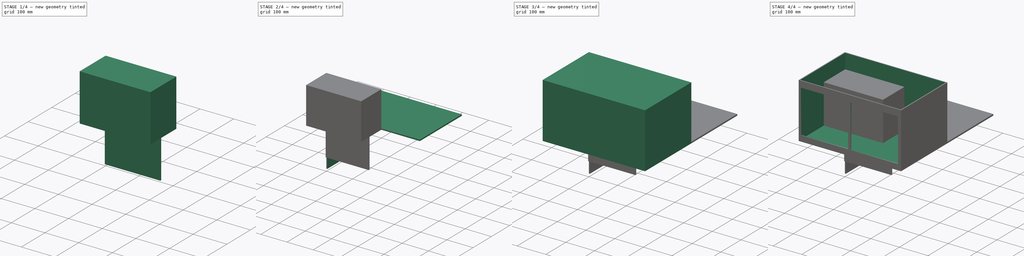
[diagram: build sequence overview — one tinted view per stage of 4, left to right]
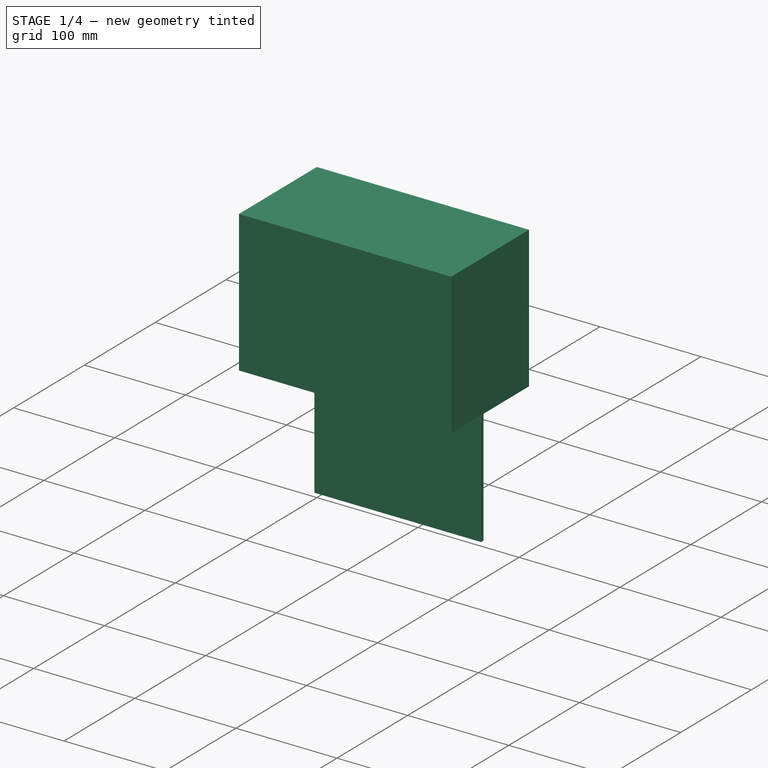
[diagram: stage 1 of 4 — iso view after this stage's code; geometry added in this stage tinted green]
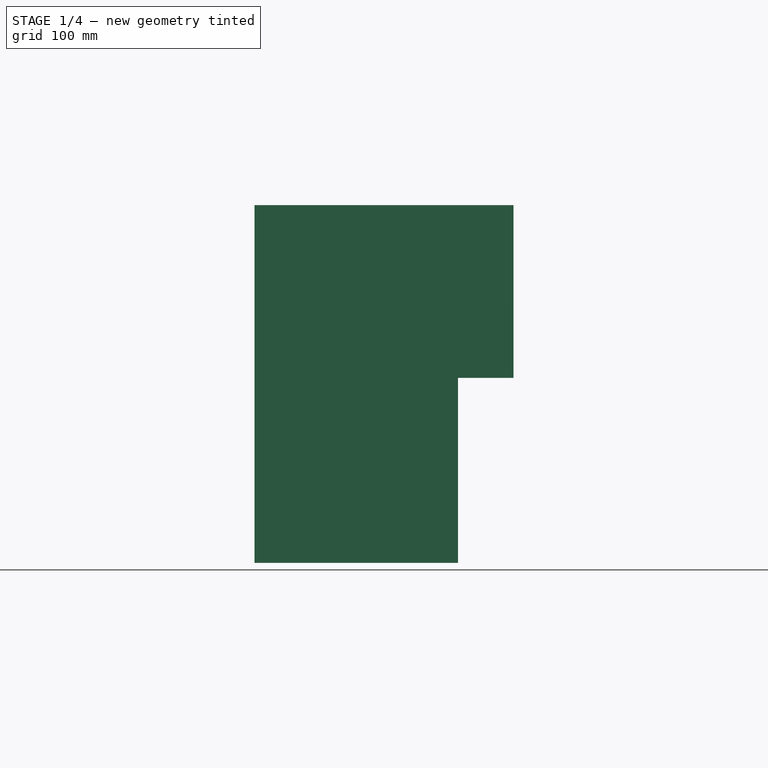
[diagram: stage 1 of 4 — front view after this stage's code; geometry added in this stage tinted green]
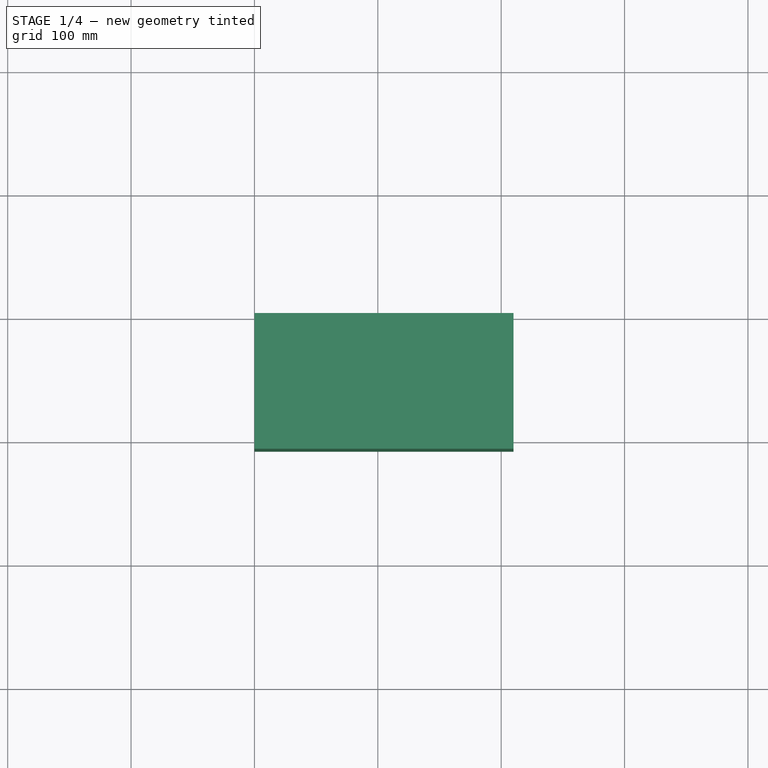
[diagram: stage 1 of 4 — top view after this stage's code; geometry added in this stage tinted green]
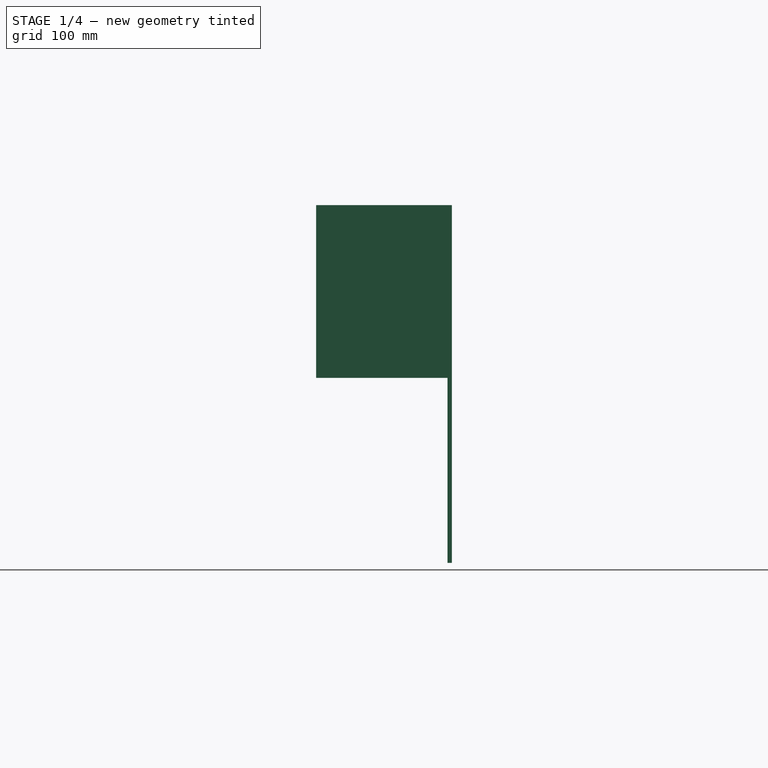
[diagram: stage 1 of 4 — right view after this stage's code; geometry added in this stage tinted green]
FCSTD DOCUMENT  (FreeCAD 0.19R24267 +99 (Git))
Label: Assembly
License: All rights reserved
LicenseURL: http://en.wikipedia.org/wiki/All_rights_reserved
objects: Sketcher::SketchObject×9, PartDesign::Pad×6, PartDesign::Body×6, Part::Feature×6, PartDesign::Pocket×3
note: 39 computed .brp shape members not serialized (recipe doc carries the construction recipe); baked Part::Feature solids carry a one-line shape summary decoded from their .brp

FEATURE [PartDesign::Body] Body003
  Group = -> [Sketch006,Pad003]
  Origin = -> Origin003
  Placement = pos=(0,-229,188) rot=(0,0,1;0rad)
  Tip = -> Pad003
FEATURE [Sketcher::SketchObject] Sketch007
  FullyConstrained = true
  MapMode = 5
  Placement = pos=(0,0,0) rot=(1,0,0;1.5708rad)
  Support = -> [XZ_Plane004]
  sketch-geometry (4):
    g0: LineSegment StartX=0 StartY=0 StartZ=0 EndX=165 EndY=0 EndZ=0
    g1: LineSegment StartX=165 StartY=0 StartZ=0 EndX=165 EndY=-150 EndZ=0
    g2: LineSegment StartX=165 StartY=-150 StartZ=0 EndX=0 EndY=-150 EndZ=0
    g3: LineSegment StartX=0 StartY=-150 StartZ=0 EndX=0 EndY=0 EndZ=0
  constraints (11):
    c: Coincident(g0,g1)
    c: Coincident(g1,g2)
    c: Coincident(g2,g3)
    c: Coincident(g3,g0)
    c: Horizontal(g0)
    c: Horizontal(g2)
    c: Vertical(g1)
    c: Vertical(g3)
    c: Coincident(g0,g-1)
    c: DistanceX(g2,g2) = 165
    c: DistanceY(g3,g3) = 150
FEATURE [PartDesign::Pad] Pad004
  Direction = (1,1,1)
  Length = 3.5
  Length2 = 100
  Placement = pos=(0,0,0) rot=(1,0,0;1.5708rad)
  Profile = -> Sketch007
  Type = 0
FEATURE [PartDesign::Body] Body004
  Group = -> [Sketch007,Pad004]
  Origin = -> Origin004
  Placement = pos=(179.7,-225.918,169) rot=(0,0,-1;0.261799rad)
  Tip = -> Pad004
FEATURE [Sketcher::SketchObject] Sketch008
  FullyConstrained = true
  MapMode = 5
  Support = -> [XY_Plane005]
  sketch-geometry (4):
    g0: LineSegment StartX=0 StartY=0 StartZ=0 EndX=210 EndY=0 EndZ=0
    g1: LineSegment StartX=210 StartY=0 StartZ=0 EndX=210 EndY=-110 EndZ=0
    g2: LineSegment StartX=210 StartY=-110 StartZ=0 EndX=0 EndY=-110 EndZ=0
    g3: LineSegment StartX=0 StartY=-110 StartZ=0 EndX=0 EndY=0 EndZ=0
  constraints (11):
    c: Coincident(g0,g1)
    c: Coincident(g1,g2)
    c: Coincident(g2,g3)
    c: Coincident(g3,g0)
    c: Horizontal(g0)
    c: Horizontal(g2)
    c: Vertical(g1)
    c: Vertical(g3)
    c: Coincident(g0,g-1)
    c: DistanceX(g0,g0) = 210
    c: DistanceY(g3,g3) = 110
FEATURE [PartDesign::Pad] Pad005
  Direction = (1,1,1)
  Length = 140
  Length2 = 100
  Profile = -> Sketch008
  Type = 0
FEATURE [PartDesign::Body] Body005
  Group = -> [Sketch008,Pad005]
  Origin = -> Origin005
  Placement = pos=(75,-119,191) rot=(0,0,1;0rad)
  Tip = -> Pad005
FEATURE [Part::Feature] Feature  label="LCD001"
  Placement = pos=(125,-231.295,289.462) rot=(1,0,0;3.14159rad)
  shape: bbox 80 x 18.3 x 36 mm, 3199 faces, 21 solids (baked)
FEATURE [Part::Feature] Feature001  label="Fingerprint Reader"
  Placement = pos=(129,-223.435,227) rot=(0,0,1;0.523599rad)
  shape: bbox 20.55 x 48.35 x 23.46 mm, 668 faces, 53 solids (baked)
FEATURE [Part::Feature] Feature002  label="ESP3-CAM v005"
  Placement = pos=(227,-224,239) rot=(0.707107,0,-0.707107;3.14159rad)
  shape: bbox 27.01 x 18.09 x 40.51 mm, 4358 faces, 111 solids (baked)
FEATURE [Part::Feature] Feature003  label="LCD002"
  Placement = pos=(236,-231.295,289.462) rot=(1,0,0;3.14159rad)
  shape: bbox 80 x 18.3 x 36 mm, 3199 faces, 21 solids (baked)
FEATURE [Part::Feature] Solid  label="Pad006"
  Placement = pos=(162,-227.413,251.97) rot=(1,0,0;1.5708rad)
  shape: bbox 6.365 x 8.3 x 6.365 mm, 45 faces (baked)
FEATURE [Part::Feature] Solid001  label="Pad007"
  Placement = pos=(198,-227.413,251.97) rot=(1,0,0;1.5708rad)
  shape: bbox 6.365 x 8.3 x 6.365 mm, 45 faces (baked)
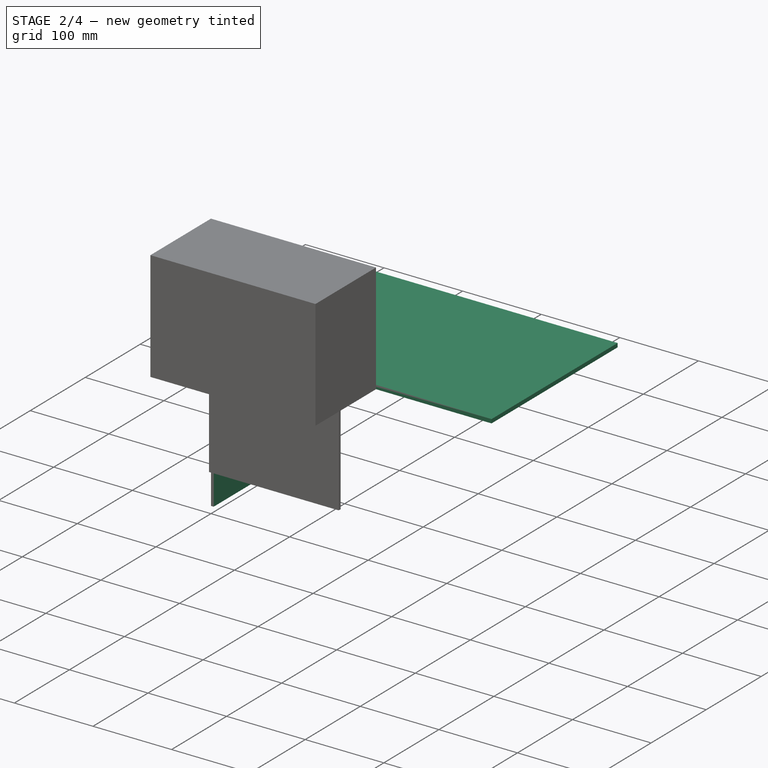
[diagram: stage 2 of 4 — iso view after this stage's code; geometry added in this stage tinted green]
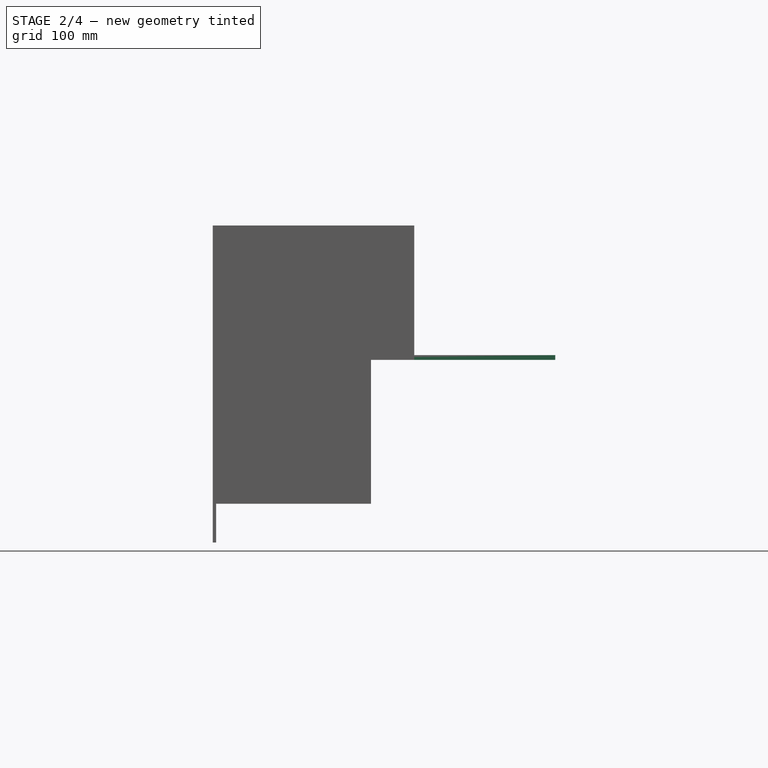
[diagram: stage 2 of 4 — front view after this stage's code; geometry added in this stage tinted green]
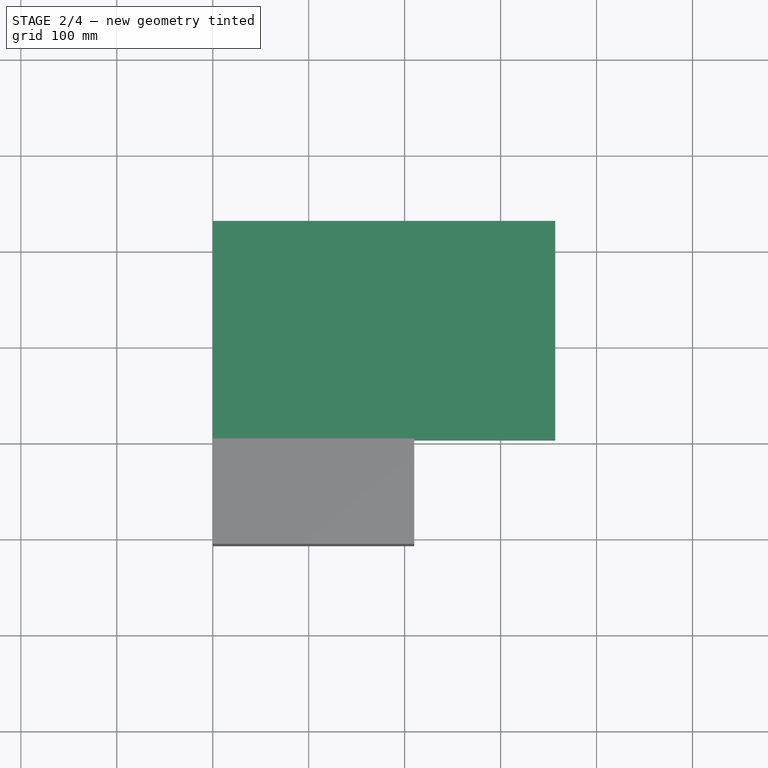
[diagram: stage 2 of 4 — top view after this stage's code; geometry added in this stage tinted green]
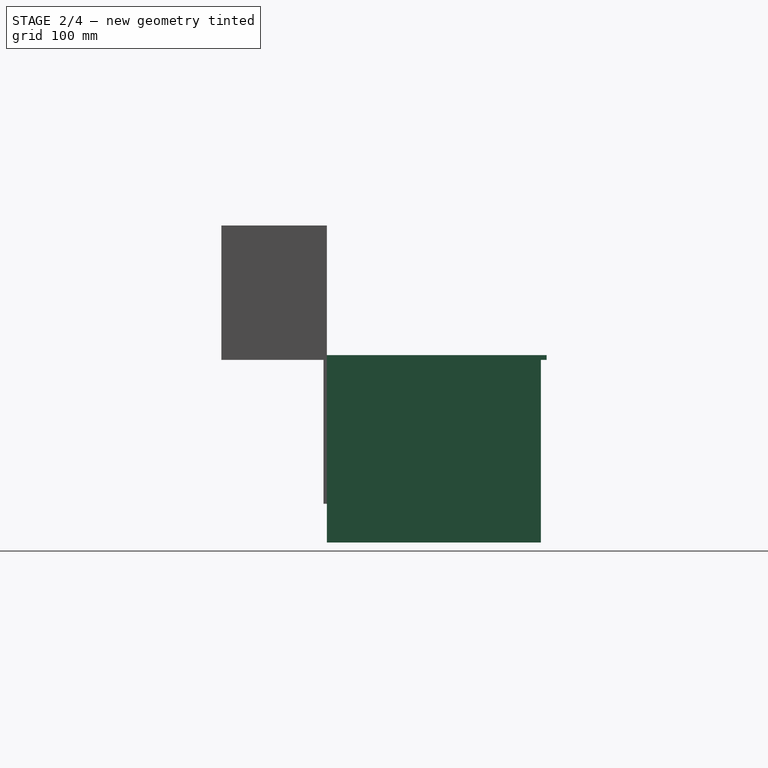
[diagram: stage 2 of 4 — right view after this stage's code; geometry added in this stage tinted green]
FEATURE [PartDesign::Body] Body001
  Group = -> [Sketch004,Pad001]
  Origin = -> Origin001
  Placement = pos=(172,-226,170) rot=(0,0,1;3.40339rad)
  Tip = -> Pad001
FEATURE [Sketcher::SketchObject] Sketch005
  FullyConstrained = true
  MapMode = 5
  Placement = pos=(0,0,0) rot=(0.57735,0.57735,0.57735;2.0944rad)
  Support = -> [YZ_Plane002]
  sketch-geometry (4):
    g0: LineSegment StartX=0 StartY=0 StartZ=0 EndX=223 EndY=0 EndZ=0
    g1: LineSegment StartX=223 StartY=0 StartZ=0 EndX=223 EndY=-190.3 EndZ=0
    g2: LineSegment StartX=223 StartY=-190.3 StartZ=0 EndX=0 EndY=-190.3 EndZ=0
    g3: LineSegment StartX=0 StartY=-190.3 StartZ=0 EndX=0 EndY=0 EndZ=0
  constraints (11):
    c: Coincident(g0,g1)
    c: Coincident(g1,g2)
    c: Coincident(g2,g3)
    c: Coincident(g3,g0)
    c: Horizontal(g0)
    c: Horizontal(g2)
    c: Vertical(g1)
    c: Vertical(g3)
    c: Coincident(g0,g-1)
    c: DistanceX(g2,g2) = 223
    c: DistanceY(g3,g3) = 190.3
FEATURE [PartDesign::Pad] Pad002
  Direction = (1,1,1)
  Length = 3.5
  Length2 = 100
  Placement = pos=(0,0,0) rot=(0.57735,0.57735,0.57735;2.0944rad)
  Profile = -> Sketch005
  Type = 0
FEATURE [PartDesign::Body] Body002
  Group = -> [Sketch005,Pad002]
  Origin = -> Origin002
  Placement = pos=(178,-229,192) rot=(0,0,1;0rad)
  Tip = -> Pad002
FEATURE [Sketcher::SketchObject] Sketch006
  FullyConstrained = true
  MapMode = 5
  Support = -> [XY_Plane003]
  sketch-geometry (4):
    g0: LineSegment StartX=0 StartY=0 StartZ=0 EndX=357 EndY=0 EndZ=0
    g1: LineSegment StartX=357 StartY=0 StartZ=0 EndX=357 EndY=229 EndZ=0
    g2: LineSegment StartX=357 StartY=229 StartZ=0 EndX=0 EndY=229 EndZ=0
    g3: LineSegment StartX=0 StartY=229 StartZ=0 EndX=0 EndY=0 EndZ=0
  constraints (11):
    c: Coincident(g0,g1)
    c: Coincident(g1,g2)
    c: Coincident(g2,g3)
    c: Coincident(g3,g0)
    c: Horizontal(g0)
    c: Horizontal(g2)
    c: Vertical(g1)
    c: Vertical(g3)
    c: Coincident(g0,g-1)
    c: DistanceX(g0,g0) = 357
    c: DistanceY(g3,g3) = 229
FEATURE [PartDesign::Pad] Pad003
  Direction = (1,1,1)
  Length = 5
  Length2 = 100
  Profile = -> Sketch006
  Type = 0
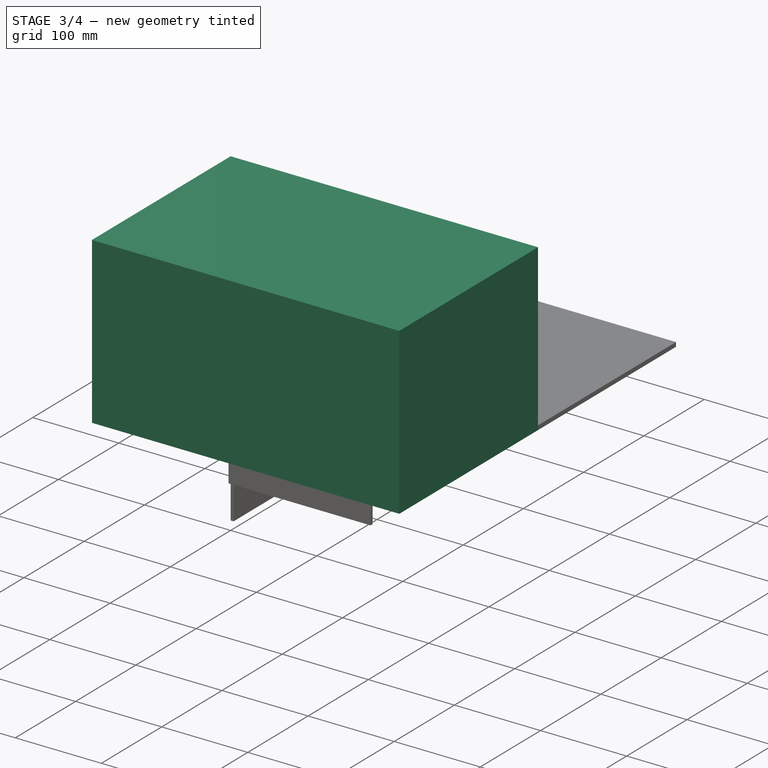
[diagram: stage 3 of 4 — iso view after this stage's code; geometry added in this stage tinted green]
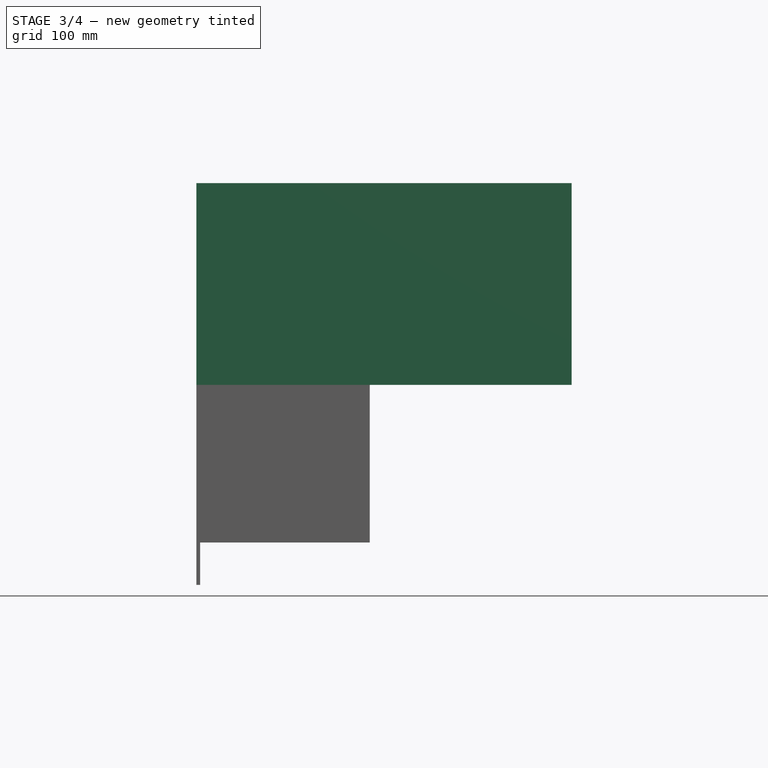
[diagram: stage 3 of 4 — front view after this stage's code; geometry added in this stage tinted green]
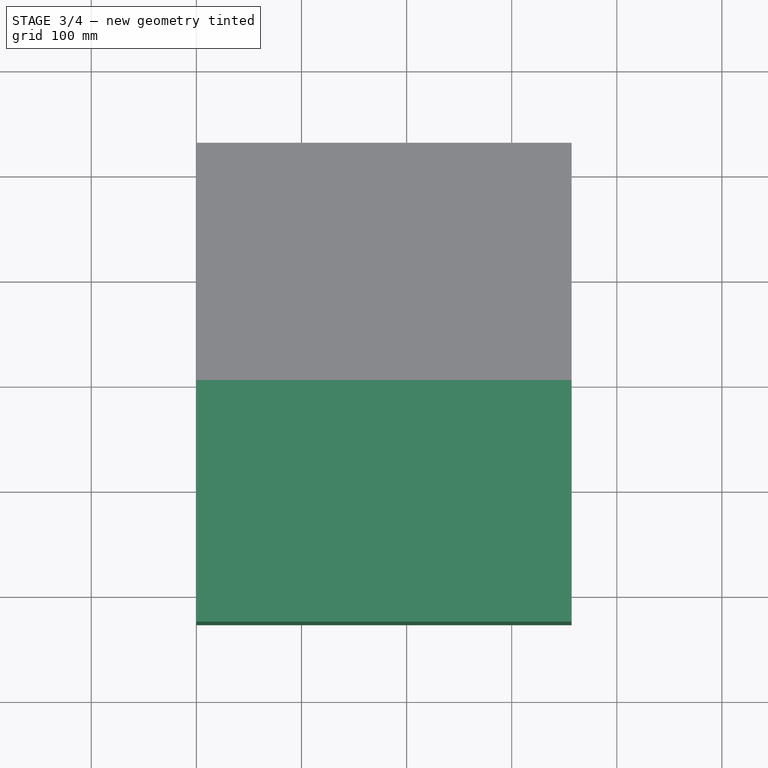
[diagram: stage 3 of 4 — top view after this stage's code; geometry added in this stage tinted green]
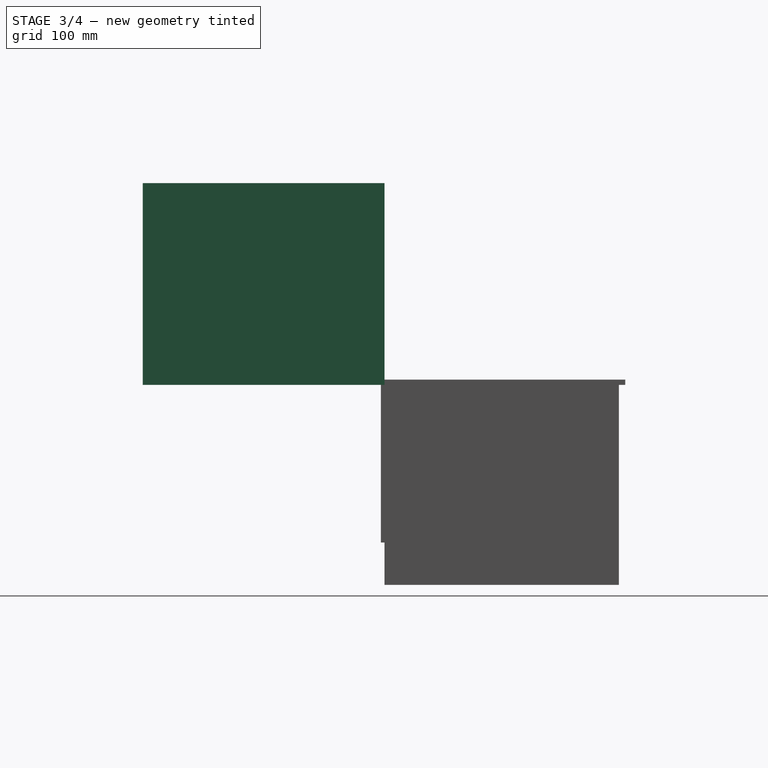
[diagram: stage 3 of 4 — right view after this stage's code; geometry added in this stage tinted green]
FEATURE [Sketcher::SketchObject] Sketch
  FullyConstrained = true
  MapMode = 5
  Placement = pos=(0,0,0) rot=(1,0,0;1.5708rad)
  Support = -> [XZ_Plane]
  sketch-geometry (4):
    g0: LineSegment StartX=0 StartY=0 StartZ=0 EndX=357 EndY=0 EndZ=0
    g1: LineSegment StartX=357 StartY=0 StartZ=0 EndX=357 EndY=197 EndZ=0
    g2: LineSegment StartX=357 StartY=197 StartZ=0 EndX=0 EndY=197 EndZ=0
    g3: LineSegment StartX=0 StartY=197 StartZ=0 EndX=0 EndY=0 EndZ=0
  constraints (11):
    c: Coincident(g0,g1)
    c: Coincident(g1,g2)
    c: Coincident(g2,g3)
    c: Coincident(g3,g0)
    c: Horizontal(g0)
    c: Horizontal(g2)
    c: Vertical(g1)
    c: Vertical(g3)
    c: Coincident(g0,g-1)
    c: DistanceX(g0,g0) = 357
    c: DistanceY(g1,g1) = 197
FEATURE [Sketcher::SketchObject] Sketch001
  AttachmentOffset = pos=(0,0,192) rot=(0,0,1;0rad)
  FullyConstrained = true
  MapMode = 5
  Placement = pos=(0,0,192) rot=(0,0,1;0rad)
  Support = -> [XY_Plane]
  sketch-geometry (4):
    g0: LineSegment StartX=0 StartY=0 StartZ=0 EndX=357 EndY=0 EndZ=0
    g1: LineSegment StartX=357 StartY=0 StartZ=0 EndX=357 EndY=-230 EndZ=0
    g2: LineSegment StartX=357 StartY=-230 StartZ=0 EndX=0 EndY=-230 EndZ=0
    g3: LineSegment StartX=0 StartY=-230 StartZ=0 EndX=0 EndY=0 EndZ=0
  constraints (11):
    c: Coincident(g0,g1)
    c: Coincident(g1,g2)
    c: Coincident(g2,g3)
    c: Coincident(g3,g0)
    c: Horizontal(g0)
    c: Horizontal(g2)
    c: Vertical(g1)
    c: Vertical(g3)
    c: Coincident(g0,g-1)
    c: DistanceY(g1,g1) = 230
    c: DistanceX(g2,g2) = 357
FEATURE [PartDesign::Pad] Pad
  Direction = (1,1,1)
  Length = 230
  Length2 = 100
  Placement = pos=(0,0,0) rot=(1,0,0;1.5708rad)
  Profile = -> Sketch
  Type = 0
FEATURE [PartDesign::Pocket] Pocket
  BaseFeature = -> Pad
  Length = 5
  Length2 = 100
  Placement = pos=(0,0,0) rot=(1,0,0;1.5708rad)
  Profile = -> Sketch001
  Reversed = true
  Type = 0
FEATURE [PartDesign::Body] Body
  Group = -> [Sketch,Pad,Sketch001,Pocket,Sketch002,Pocket001,Sketch003,Pocket002]
  Origin = -> Origin
  Tip = -> Pocket002
FEATURE [Sketcher::SketchObject] Sketch004
  FullyConstrained = true
  MapMode = 5
  Placement = pos=(0,0,0) rot=(1,0,0;1.5708rad)
  Support = -> [XZ_Plane001]
  sketch-geometry (4):
    g0: LineSegment StartX=0 StartY=0 StartZ=0 EndX=165 EndY=0 EndZ=0
    g1: LineSegment StartX=165 StartY=0 StartZ=0 EndX=165 EndY=-150 EndZ=0
    g2: LineSegment StartX=165 StartY=-150 StartZ=0 EndX=0 EndY=-150 EndZ=0
    g3: LineSegment StartX=0 StartY=-150 StartZ=0 EndX=0 EndY=0 EndZ=0
  constraints (11):
    c: Coincident(g0,g1)
    c: Coincident(g1,g2)
    c: Coincident(g2,g3)
    c: Coincident(g3,g0)
    c: Horizontal(g0)
    c: Horizontal(g2)
    c: Vertical(g1)
    c: Vertical(g3)
    c: Coincident(g0,g-1)
    c: DistanceX(g2,g2) = 165
    c: DistanceY(g3,g3) = 150
FEATURE [PartDesign::Pad] Pad001
  Direction = (1,1,1)
  Length = 3.5
  Length2 = 100
  Placement = pos=(0,0,0) rot=(1,0,0;1.5708rad)
  Profile = -> Sketch004
  Type = 0
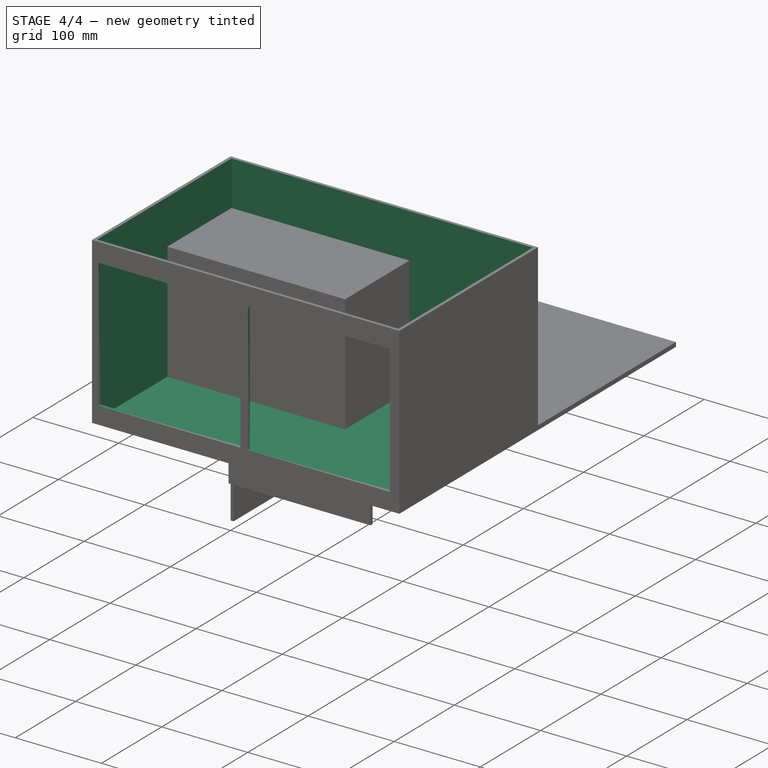
[diagram: stage 4 of 4 — iso view after this stage's code; geometry added in this stage tinted green]
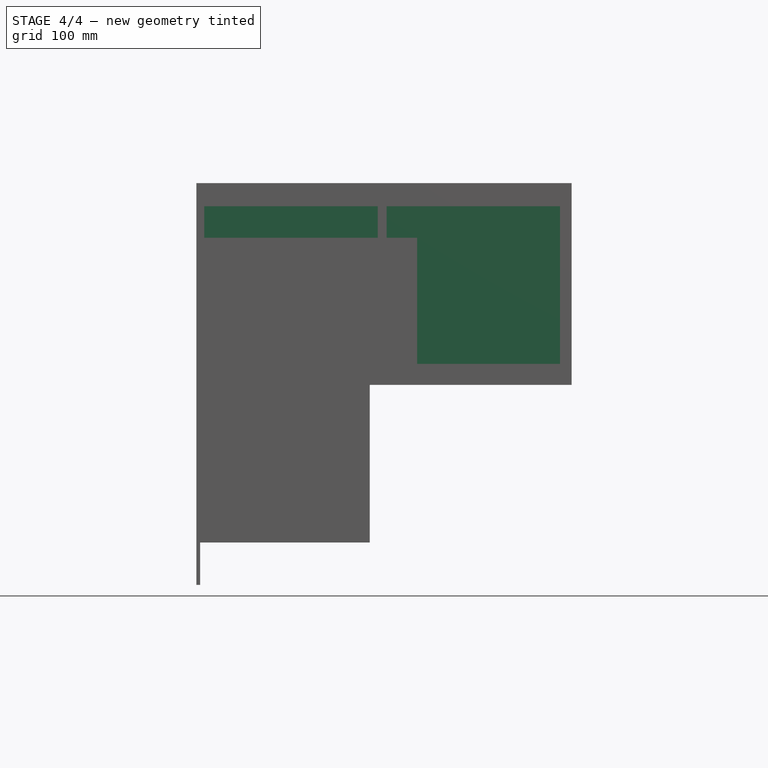
[diagram: stage 4 of 4 — front view after this stage's code; geometry added in this stage tinted green]
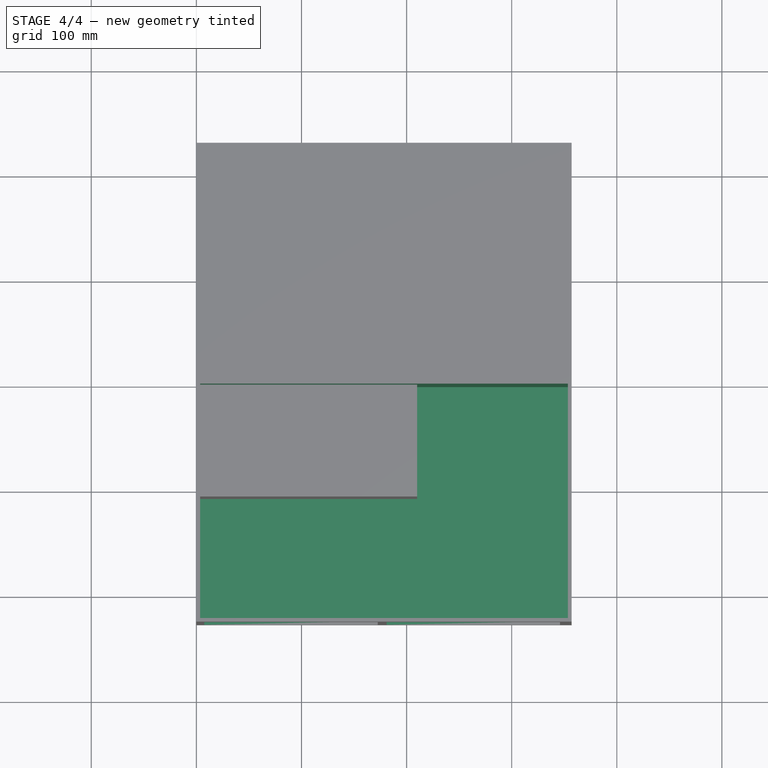
[diagram: stage 4 of 4 — top view after this stage's code; geometry added in this stage tinted green]
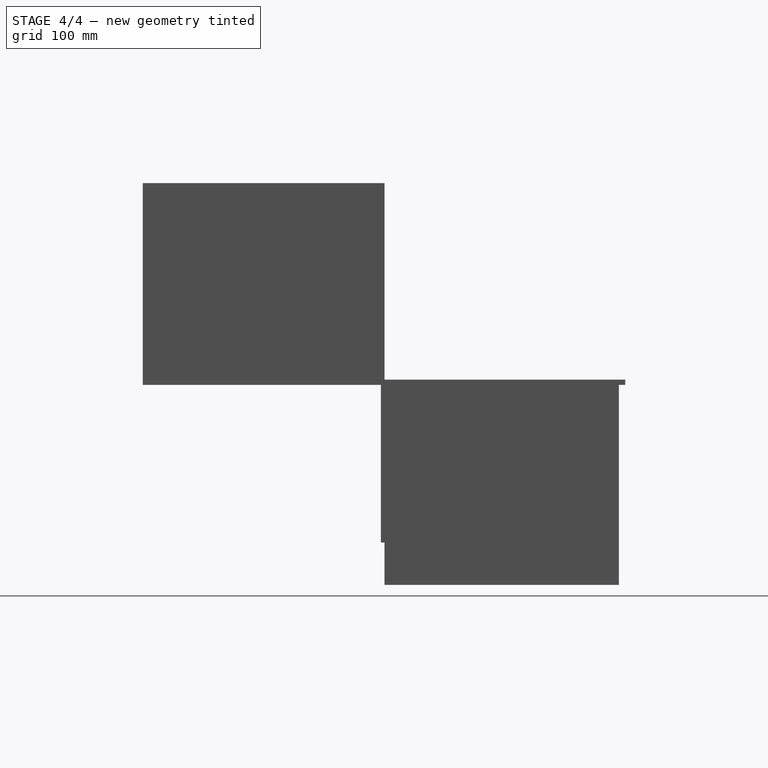
[diagram: stage 4 of 4 — right view after this stage's code; geometry added in this stage tinted green]
FEATURE [Sketcher::SketchObject] Sketch003
  AttachmentOffset = pos=(7.5,20,220) rot=(0,0,1;0rad)
  FullyConstrained = false
  MapMode = 5
  Placement = pos=(7.5,-220,20) rot=(1,0,0;1.5708rad)
  Support = -> [XZ_Plane]
  sketch-geometry (9):
    g0: LineSegment StartX=0 StartY=0 StartZ=0 EndX=165 EndY=0 EndZ=0
    g1: LineSegment StartX=165 StartY=0 StartZ=0 EndX=165 EndY=150 EndZ=0
    g2: LineSegment StartX=165 StartY=150 StartZ=0 EndX=0 EndY=150 EndZ=0
    g3: LineSegment StartX=0 StartY=150 StartZ=0 EndX=0 EndY=0 EndZ=0
    g4: LineSegment StartX=169.036 StartY=150 StartZ=0 EndX=174.036 EndY=150 EndZ=0
    g5: LineSegment StartX=173.498 StartY=6.253e-13 StartZ=0 EndX=338.498 EndY=6.253e-13 EndZ=0
    g6: LineSegment StartX=338.498 StartY=6.253e-13 StartZ=0 EndX=338.498 EndY=150 EndZ=0
    g7: LineSegment StartX=338.498 StartY=150 StartZ=0 EndX=173.498 EndY=150 EndZ=0
    g8: LineSegment StartX=173.498 StartY=150 StartZ=0 EndX=173.498 EndY=6.253e-13 EndZ=0
  constraints (25):
    c: Coincident(g0,g1)
    c: Coincident(g1,g2)
    c: Coincident(g2,g3)
    c: Coincident(g3,g0)
    c: Horizontal(g0)
    c: Horizontal(g2)
    c: Vertical(g1)
    c: Vertical(g3)
    c: Coincident(g0,g-1)
    c: DistanceX(g0,g0) = 165
    c: DistanceY(g1,g1) = 150
    c: PointOnObject(g4,g2)
    c: Horizontal(g4)
    c: DistanceX(g4,g4) = 5
    c: Coincident(g5,g6)
    c: Coincident(g6,g7)
    c: Coincident(g7,g8)
    c: Coincident(g8,g5)
    c: Horizontal(g5)
    c: Horizontal(g7)
    c: Vertical(g6)
    c: Vertical(g8)
    c: DistanceX(g5,g5) = 165
    c: DistanceY(g6,g6) = 150
    c: PointOnObject(g8,g4)
FEATURE [Sketcher::SketchObject] Sketch002
  AttachmentOffset = pos=(3.5,-3.5,3.5) rot=(0,0,1;0rad)
  FullyConstrained = true
  MapMode = 5
  Placement = pos=(3.5,-3.5,3.5) rot=(0,0,1;0rad)
  Support = -> [XY_Plane]
  sketch-geometry (4):
    g0: LineSegment StartX=0 StartY=0 StartZ=0 EndX=350 EndY=0 EndZ=0
    g1: LineSegment StartX=350 StartY=0 StartZ=0 EndX=350 EndY=-223 EndZ=0
    g2: LineSegment StartX=350 StartY=-223 StartZ=0 EndX=0 EndY=-223 EndZ=0
    g3: LineSegment StartX=0 StartY=-223 StartZ=0 EndX=0 EndY=0 EndZ=0
  constraints (11):
    c: Coincident(g0,g1)
    c: Coincident(g1,g2)
    c: Coincident(g2,g3)
    c: Coincident(g3,g0)
    c: Horizontal(g0)
    c: Horizontal(g2)
    c: Vertical(g1)
    c: Vertical(g3)
    c: Coincident(g0,g-1)
    c: DistanceY(g1,g1) = 223
    c: DistanceX(g2,g2) = 350
FEATURE [PartDesign::Pocket] Pocket001
  BaseFeature = -> Pocket
  Length = 192
  Length2 = 100
  Placement = pos=(0,0,0) rot=(1,0,0;1.5708rad)
  Profile = -> Sketch002
  Reversed = true
  Type = 0
FEATURE [PartDesign::Pocket] Pocket002
  BaseFeature = -> Pocket001
  Length = 10
  Length2 = 100
  Placement = pos=(0,0,0) rot=(1,0,0;1.5708rad)
  Profile = -> Sketch003
  Reversed = true
  Type = 0
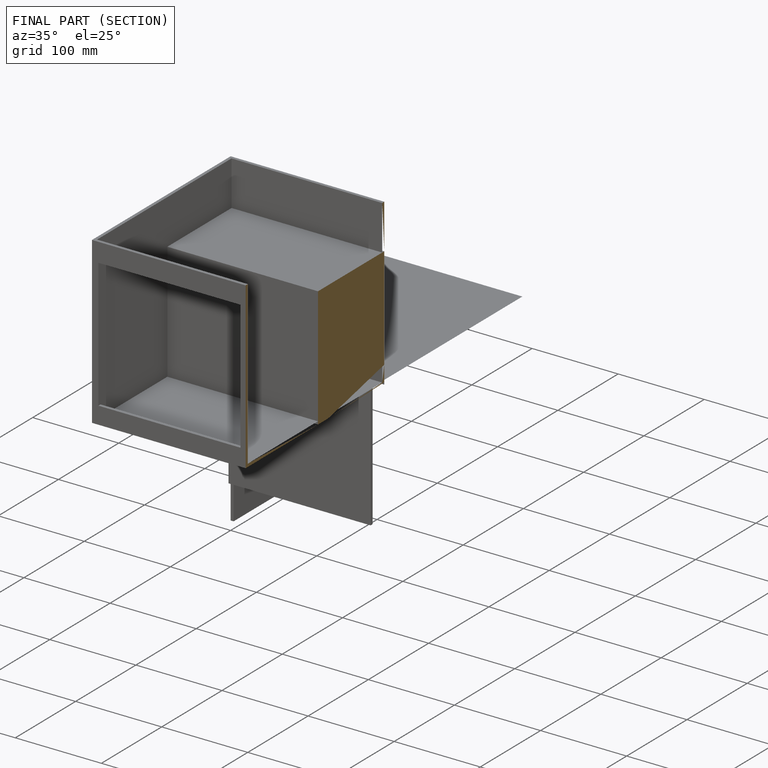
[diagram: finished part — half-section view (interior)]
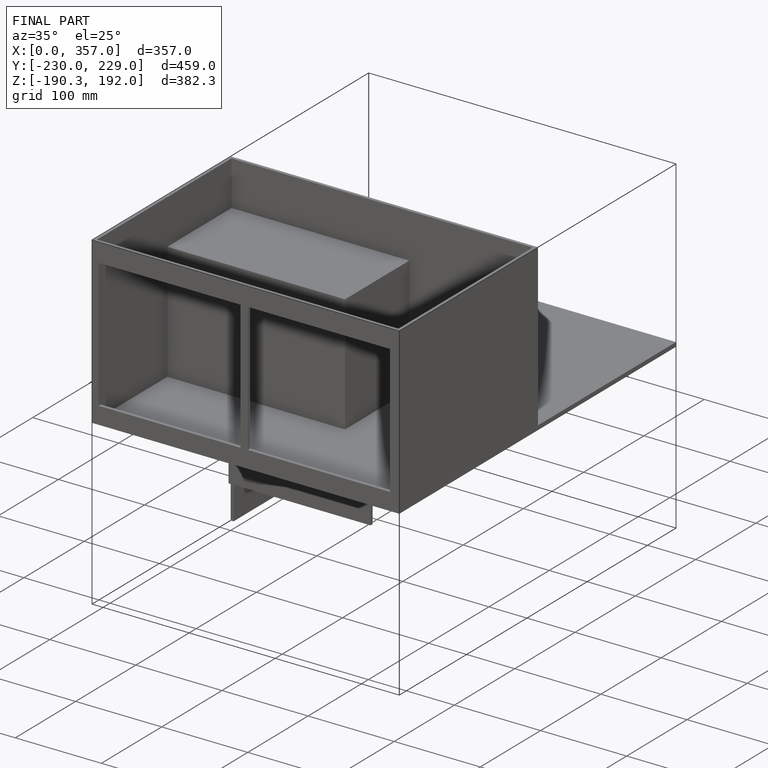
[diagram: finished part — iso view with bounding-box wireframe]
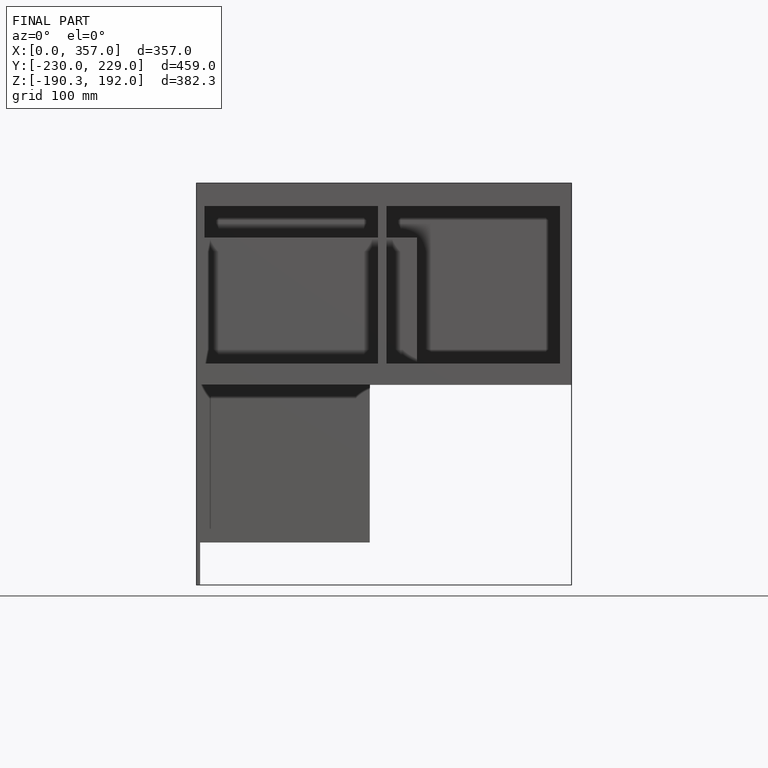
[diagram: finished part — front view with bounding-box wireframe]
